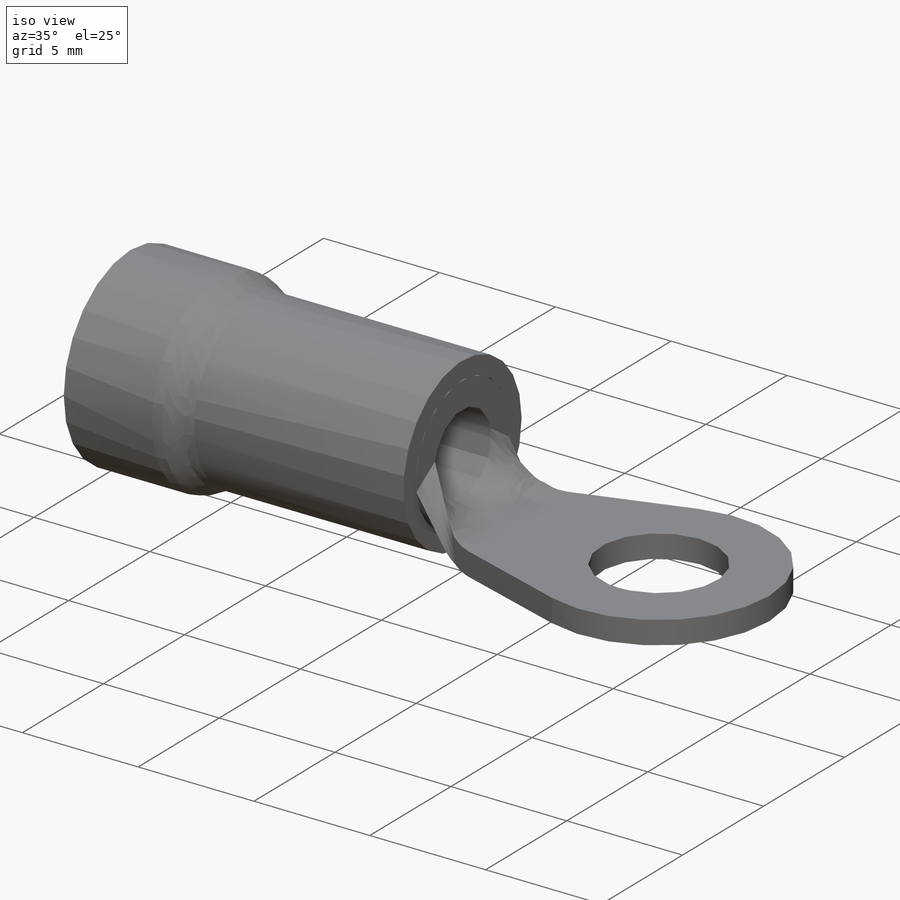
[diagram: iso view]
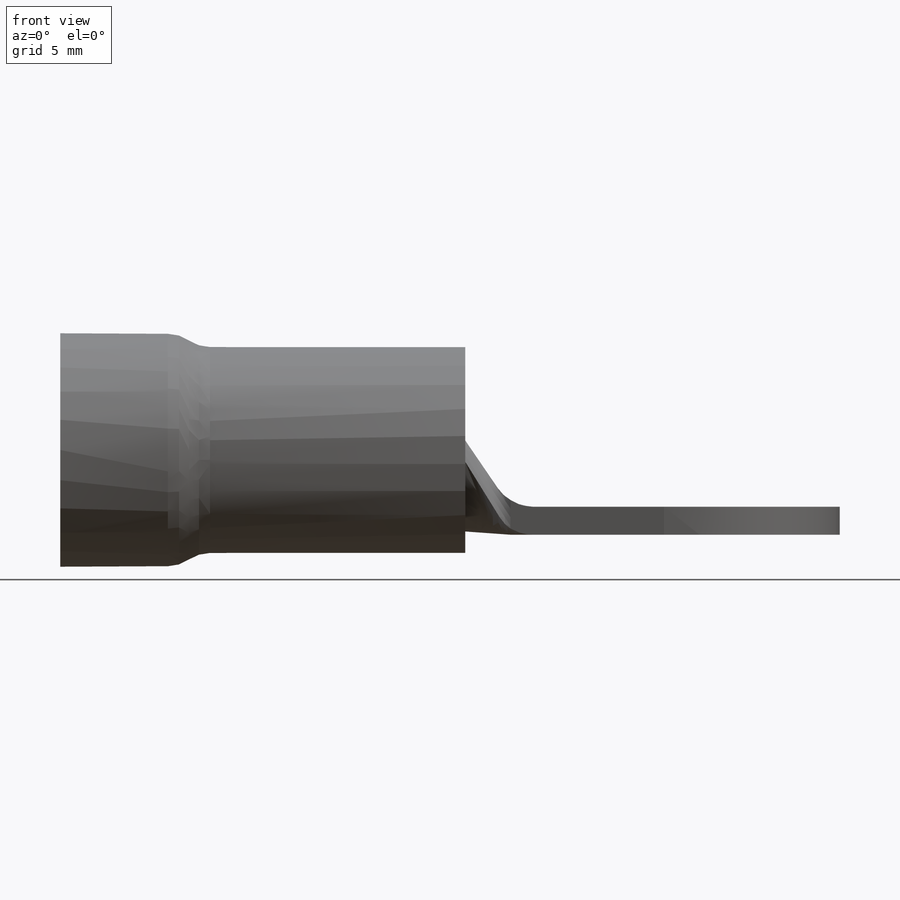
[diagram: front view]
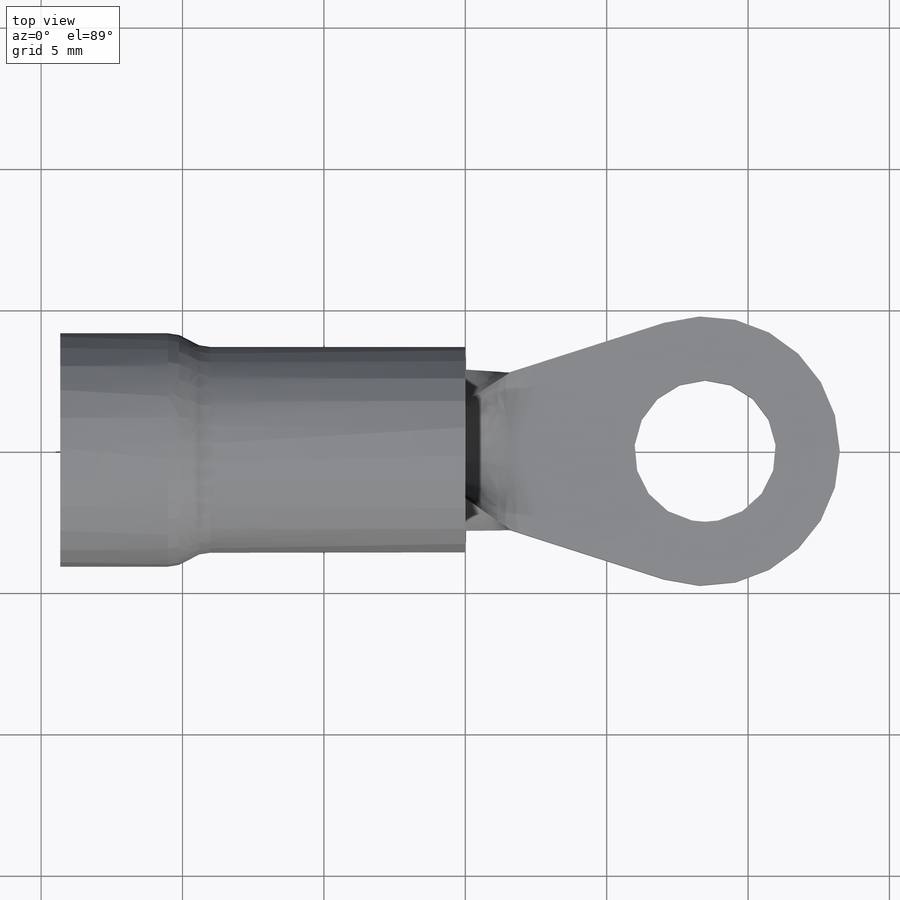
[diagram: top view]
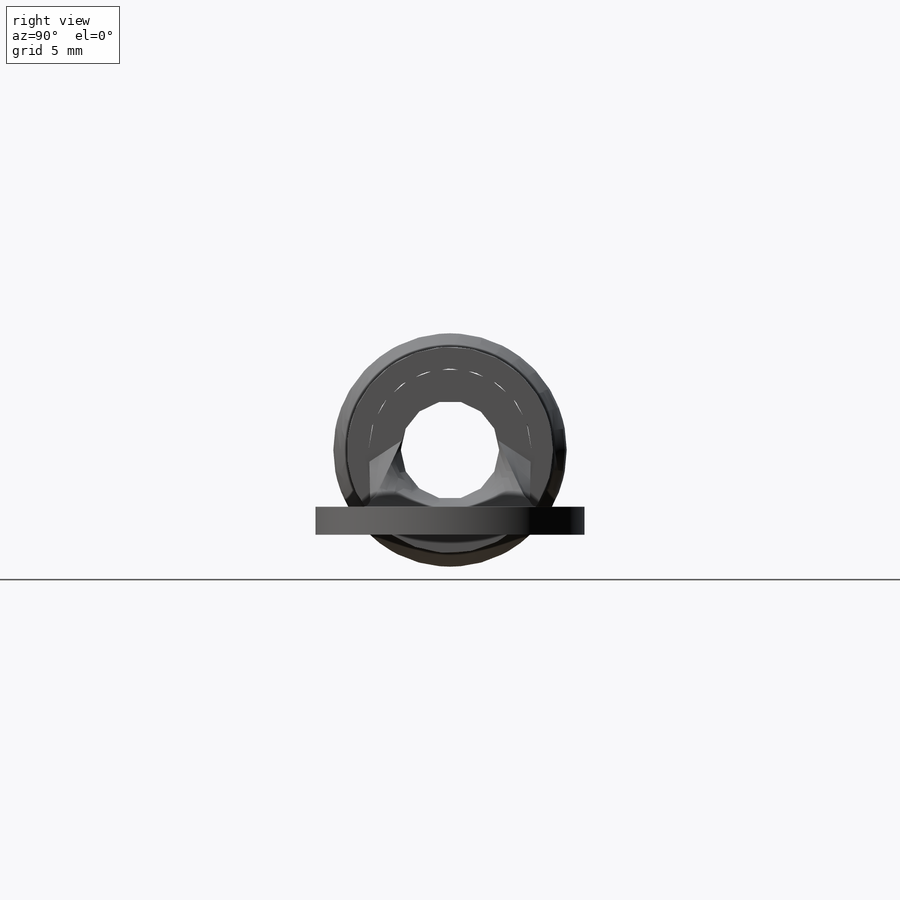
[diagram: right view]
SOLIDWORKS PART (.sldprt)
format: sldprt  version: not decoded by parser v0  size: 273,408 bytes
history: native  units: mm
features: sketch x4, extrude x2, material x1, plane x1, fillet x1 (+12 scaffold rows collapsed)
feature tree (21):
  scaffold x12  (default folders/planes/origin — collapsed)
  material  "Material <not specified>"
  sketch  "Sketch1"  dims[c1.D2=1.27mm c1.D1=8.255mm c1.D3=7.2898mm c1.D4=12.7mm c1.D5=3.81mm c2.D4=14.3256mm c2.D1=360.0deg c2.D3=0.762mm c3.D4=1.0mm c3.D7=0.0mm]
  sketch  "Sketch2"  dims[D1=1.016mm]
  extrude  "Extrude1"  Depth=6.35mm
  plane  "Plane1"  Offset=2.9972mm
  sketch  "Sketch5"  dims[c1.D3=9.525mm c1.D4=5.0038mm c1.D2=5.0038mm c1.D1=1.6002mm c2.D2=13.4874mm c2.D5=5.588mm c3.D2=22.8092mm]
  extrude  "Extrude2"  Depth=0.9906mm
  sketch  "Sketch6"  dims[c1.D1=2.8829mm c2.D1=~121.965851deg c3.D1=2.8829mm c4.D1=160.0deg c4.D2=3.429mm]
  fillet  "Fillet1"  Radius=1.27mm
decode coverage: 7 of 7 modeling features carry decoded parameters
note: ~ marks probable driven/reference dimensions
note: suppression state not decoded; provenance and decode notes live in map.json
